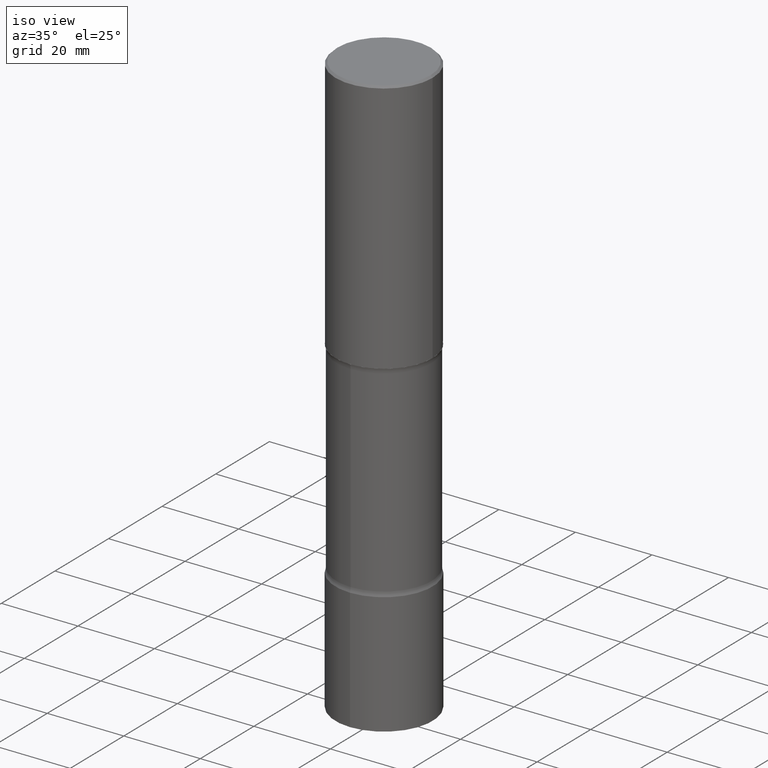
[diagram: clean part render]
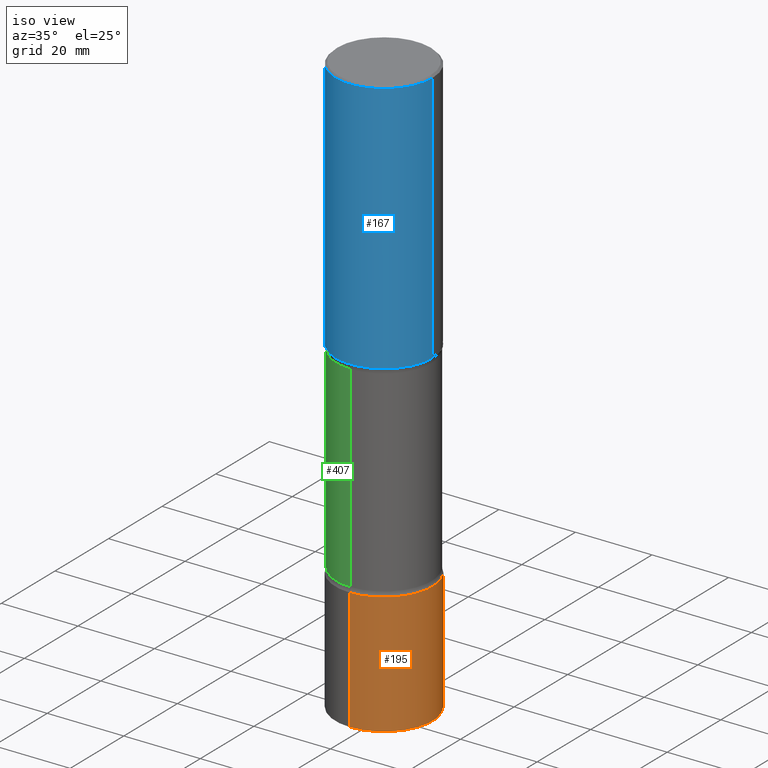
[diagram: same view with three faces highlighted in distinct colors, each labeled with its STEP entity id]
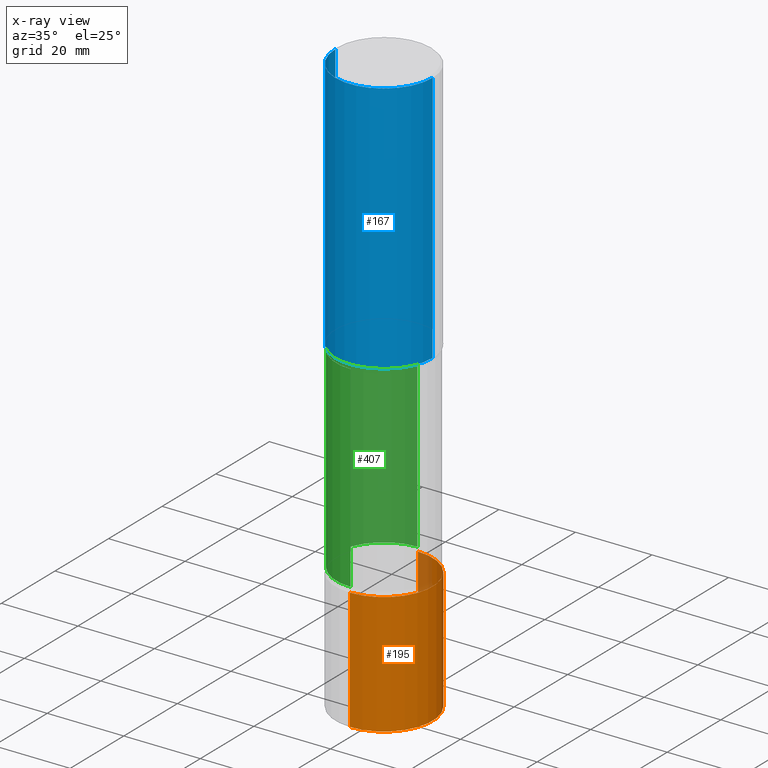
[diagram: x-ray of the same camera — body ghosted, the three highlighted faces saturated]
A machine part, iso view with three faces highlighted in distinct colors.
The next image is the same camera in x-ray (body ghosted, the three faces saturated) — at least one of them is partly hidden behind the body in this view.
Their STEP definitions:

[orange] entity #195 — the highlighted cylindrical surface (partial cylindrical patch) has radius 12.7 mm, axis along (-0, 0, 1).
#8 = DIRECTION ( 'NONE',  ( -2.444607917511519707E-29, 3.492714180422504382E-15, 1.000000000000000000 ) ) ;
#18 = CARTESIAN_POINT ( 'NONE',  ( -3.491481338843133355E-15, -0.5000000000000001110, 1.746357090211252585E-15 ) ) ;
#21 = CIRCLE ( 'NONE', #318, 0.5000000000000001110 ) ;
#41 = EDGE_LOOP ( 'NONE', ( #147, #309, #160, #263 ) ) ;
#56 = VERTEX_POINT ( 'NONE', #508 ) ;
#76 = EDGE_CURVE ( 'NONE', #56, #335, #260, .T. ) ;
#81 = DIRECTION ( 'NONE',  ( -2.444607917511519987E-29, 3.492714180422504776E-15, 1.000000000000000000 ) ) ;
#89 = DIRECTION ( 'NONE',  ( -6.982962677686265133E-15, -1.000000000000000000, 3.492714180422504382E-15 ) ) ;
#124 = AXIS2_PLACEMENT_3D ( 'NONE', #213, #324, #89 ) ;
#147 = ORIENTED_EDGE ( 'NONE', *, *, #76, .T. ) ;
#154 = DIRECTION ( 'NONE',  ( -2.444607917511519987E-29, 3.492714180422504776E-15, 1.000000000000000000 ) ) ;
#157 = EDGE_CURVE ( 'NONE', #335, #290, #368, .T. ) ;
#160 = ORIENTED_EDGE ( 'NONE', *, *, #264, .F. ) ;
#166 = DIRECTION ( 'NONE',  ( -6.982962677686265922E-15, -1.000000000000000000, 3.278217592397115073E-15 ) ) ;
#169 = CARTESIAN_POINT ( 'NONE',  ( 3.552713678800500929E-15, 0.5000000000000001110, -1.746357090211252585E-15 ) ) ;
#176 = DIRECTION ( 'NONE',  ( -2.444607917511519707E-29, 3.492714180422504382E-15, 1.000000000000000000 ) ) ;
#195 = ADVANCED_FACE ( 'NONE', ( #401 ), #326, .T. ) ;
#213 = CARTESIAN_POINT ( 'NONE',  ( 0.000000000000000000, 0.000000000000000000, 0.000000000000000000 ) ) ;
#248 = CARTESIAN_POINT ( 'NONE',  ( 3.552713678800647657E-15, 0.4999999999999835132, -4.750000000000001776 ) ) ;
#260 = CIRCLE ( 'NONE', #347, 0.5000000000000000000 ) ;
#263 = ORIENTED_EDGE ( 'NONE', *, *, #364, .F. ) ;
#264 = EDGE_CURVE ( 'NONE', #490, #290, #21, .T. ) ;
#265 = CARTESIAN_POINT ( 'NONE',  ( 3.552713678800631091E-15, 0.4999999999999790168, -6.000000000000002665 ) ) ;
#283 = CARTESIAN_POINT ( 'NONE',  ( -3.491481338843017787E-15, -0.5000000000000167644, -4.749999999999999112 ) ) ;
#290 = VERTEX_POINT ( 'NONE', #248 ) ;
#309 = ORIENTED_EDGE ( 'NONE', *, *, #157, .T. ) ;
#310 = VECTOR ( 'NONE', #176, 39.37007874015748143 ) ;
#318 = AXIS2_PLACEMENT_3D ( 'NONE', #322, #81, #166 ) ;
#322 = CARTESIAN_POINT ( 'NONE',  ( 1.161188760817972078E-28, -1.659039235700689818E-14, -4.750000000000000000 ) ) ;
#324 = DIRECTION ( 'NONE',  ( -2.444607917511519987E-29, 3.492714180422504776E-15, 1.000000000000000000 ) ) ;
#326 = CYLINDRICAL_SURFACE ( 'NONE', #124, 0.5000000000000001110 ) ;
#335 = VERTEX_POINT ( 'NONE', #265 ) ;
#347 = AXIS2_PLACEMENT_3D ( 'NONE', #470, #154, #351 ) ;
#351 = DIRECTION ( 'NONE',  ( -6.982962677686265922E-15, -1.000000000000000000, 4.370956789862821150E-15 ) ) ;
#364 = EDGE_CURVE ( 'NONE', #56, #490, #485, .T. ) ;
#368 = LINE ( 'NONE', #169, #393 ) ;
#393 = VECTOR ( 'NONE', #8, 39.37007874015748143 ) ;
#401 = FACE_OUTER_BOUND ( 'NONE', #41, .T. ) ;
#470 = CARTESIAN_POINT ( 'NONE',  ( 1.466764750506912217E-28, -2.095628508253502945E-14, -6.000000000000000888 ) ) ;
#485 = LINE ( 'NONE', #18, #310 ) ;
#490 = VERTEX_POINT ( 'NONE', #283 ) ;
#508 = CARTESIAN_POINT ( 'NONE',  ( -3.491481338842986233E-15, -0.5000000000000209832, -5.999999999999998224 ) ) ;

[blue] entity #167 — the highlighted cylindrical surface (partial cylindrical patch) has radius 12.7 mm, axis along (-0, 0, 1).
#13 = VERTEX_POINT ( 'NONE', #148 ) ;
#14 = AXIS2_PLACEMENT_3D ( 'NONE', #480, #297, #250 ) ;
#20 = VERTEX_POINT ( 'NONE', #350 ) ;
#53 = FACE_OUTER_BOUND ( 'NONE', #467, .T. ) ;
#67 = ORIENTED_EDGE ( 'NONE', *, *, #424, .T. ) ;
#73 = DIRECTION ( 'NONE',  ( -2.445468806185136597E-29, 3.491481338843145583E-15, 1.000000000000000000 ) ) ;
#82 = EDGE_CURVE ( 'NONE', #99, #20, #323, .T. ) ;
#96 = AXIS2_PLACEMENT_3D ( 'NONE', #240, #73, #242 ) ;
#97 = VECTOR ( 'NONE', #372, 39.37007874015748143 ) ;
#99 = VERTEX_POINT ( 'NONE', #463 ) ;
#104 = CARTESIAN_POINT ( 'NONE',  ( 0.4999999999999997780, -3.491481338843131778E-15, 2.438088387897966775E-29 ) ) ;
#132 = VECTOR ( 'NONE', #261, 39.37007874015748143 ) ;
#135 = DIRECTION ( 'NONE',  ( -2.445468806185136597E-29, 3.491481338843145583E-15, 1.000000000000000000 ) ) ;
#148 = CARTESIAN_POINT ( 'NONE',  ( 0.5000000000000000000, -1.265661985330639628E-14, -2.625000000000001776 ) ) ;
#167 = ADVANCED_FACE ( 'NONE', ( #53 ), #477, .T. ) ;
#168 = AXIS2_PLACEMENT_3D ( 'NONE', #445, #135, #434 ) ;
#179 = EDGE_CURVE ( 'NONE', #454, #13, #488, .T. ) ;
#228 = ORIENTED_EDGE ( 'NONE', *, *, #435, .F. ) ;
#233 = ORIENTED_EDGE ( 'NONE', *, *, #82, .F. ) ;
#234 = CARTESIAN_POINT ( 'NONE',  ( -0.5000000000000000000, -1.064770391819559223E-15, -2.625000000000001776 ) ) ;
#240 = CARTESIAN_POINT ( 'NONE',  ( 4.890937612370289799E-31, -6.982962677686315028E-17, -0.02000000000000006981 ) ) ;
#242 = DIRECTION ( 'NONE',  ( 1.000000000000000000, -6.982962677686266711E-15, 0.000000000000000000 ) ) ;
#250 = DIRECTION ( 'NONE',  ( 1.000000000000000000, -6.982962677686266711E-15, 0.000000000000000000 ) ) ;
#261 = DIRECTION ( 'NONE',  ( -2.445468806185136877E-29, 3.491481338843145188E-15, 1.000000000000000000 ) ) ;
#297 = DIRECTION ( 'NONE',  ( -2.445468806185136597E-29, 3.491481338843145583E-15, 1.000000000000000000 ) ) ;
#308 = ORIENTED_EDGE ( 'NONE', *, *, #179, .T. ) ;
#323 = CIRCLE ( 'NONE', #96, 0.4999999999999996114 ) ;
#350 = CARTESIAN_POINT ( 'NONE',  ( 0.4999999999999996114, -3.500078625662626318E-15, -0.02000000000000006981 ) ) ;
#372 = DIRECTION ( 'NONE',  ( -2.445468806185136877E-29, 3.491481338843145188E-15, 1.000000000000000000 ) ) ;
#411 = LINE ( 'NONE', #495, #97 ) ;
#424 = EDGE_CURVE ( 'NONE', #13, #20, #453, .T. ) ;
#434 = DIRECTION ( 'NONE',  ( 1.000000000000000000, -6.982962677686266711E-15, 4.876176775795935793E-29 ) ) ;
#435 = EDGE_CURVE ( 'NONE', #454, #99, #411, .T. ) ;
#445 = CARTESIAN_POINT ( 'NONE',  ( 0.000000000000000000, 0.000000000000000000, 0.000000000000000000 ) ) ;
#453 = LINE ( 'NONE', #104, #132 ) ;
#454 = VERTEX_POINT ( 'NONE', #234 ) ;
#463 = CARTESIAN_POINT ( 'NONE',  ( -0.4999999999999996114, 3.421651712066267296E-15, -0.02000000000000006981 ) ) ;
#467 = EDGE_LOOP ( 'NONE', ( #228, #308, #67, #233 ) ) ;
#477 = CYLINDRICAL_SURFACE ( 'NONE', #168, 0.4999999999999997780 ) ;
#480 = CARTESIAN_POINT ( 'NONE',  ( 6.419355616235988051E-29, -9.165138514463262923E-15, -2.625000000000001776 ) ) ;
#488 = CIRCLE ( 'NONE', #14, 0.5000000000000000000 ) ;
#495 = CARTESIAN_POINT ( 'NONE',  ( -0.4999999999999997780, 3.552713678800499352E-15, -2.459467545127452050E-29 ) ) ;

[green] entity #407 — the highlighted cylindrical surface (partial cylindrical patch) has radius 12.446 mm, axis along (0, -0, -1).
#6 = AXIS2_PLACEMENT_3D ( 'NONE', #211, #174, #370 ) ;
#35 = EDGE_CURVE ( 'NONE', #59, #111, #319, .T. ) ;
#59 = VERTEX_POINT ( 'NONE', #427 ) ;
#61 = CARTESIAN_POINT ( 'NONE',  ( 1.148444794047964962E-28, -1.643028152359054986E-14, -4.701010205144336318 ) ) ;
#63 = VECTOR ( 'NONE', #122, 39.37007874015748143 ) ;
#101 = DIRECTION ( 'NONE',  ( 2.601351323791836917E-29, -3.268248701348439037E-15, -1.000000000000000000 ) ) ;
#111 = VERTEX_POINT ( 'NONE', #315 ) ;
#122 = DIRECTION ( 'NONE',  ( 2.601351323791836917E-29, -3.268248701348439037E-15, -1.000000000000000000 ) ) ;
#128 = VERTEX_POINT ( 'NONE', #150 ) ;
#137 = CARTESIAN_POINT ( 'NONE',  ( 1.486357676291951426E-28, -2.067570323369244540E-14, -5.999999999999999112 ) ) ;
#141 = DIRECTION ( 'NONE',  ( 6.982962677686266711E-15, 1.000000000000000000, -2.230079994827968904E-15 ) ) ;
#150 = CARTESIAN_POINT ( 'NONE',  ( 3.421651712066386020E-15, 0.4899999999999836153, -4.701010205144338094 ) ) ;
#163 = VERTEX_POINT ( 'NONE', #217 ) ;
#174 = DIRECTION ( 'NONE',  ( 2.601351323791836917E-29, -3.268248701348439037E-15, -1.000000000000000000 ) ) ;
#184 = AXIS2_PLACEMENT_3D ( 'NONE', #137, #414, #141 ) ;
#192 = LINE ( 'NONE', #500, #194 ) ;
#194 = VECTOR ( 'NONE', #101, 39.37007874015748143 ) ;
#196 = EDGE_LOOP ( 'NONE', ( #270, #375, #317, #471 ) ) ;
#211 = CARTESIAN_POINT ( 'NONE',  ( 6.211455712822142342E-29, -9.805474700057820647E-15, -2.673989794855665458 ) ) ;
#217 = CARTESIAN_POINT ( 'NONE',  ( 3.421651712066334744E-15, 0.4899999999999904432, -2.673989794855666791 ) ) ;
#221 = CIRCLE ( 'NONE', #272, 0.4900000000000001021 ) ;
#246 = CARTESIAN_POINT ( 'NONE',  ( -3.361644018907903327E-15, -0.4900000000000209188, -5.999999999999998224 ) ) ;
#255 = DIRECTION ( 'NONE',  ( 6.982962677686266711E-15, 1.000000000000000000, -3.345119992241954342E-15 ) ) ;
#270 = ORIENTED_EDGE ( 'NONE', *, *, #35, .F. ) ;
#272 = AXIS2_PLACEMENT_3D ( 'NONE', #61, #360, #255 ) ;
#307 = CYLINDRICAL_SURFACE ( 'NONE', #184, 0.4900000000000002132 ) ;
#315 = CARTESIAN_POINT ( 'NONE',  ( -3.395946508896793533E-15, -0.4900000000000166445, -4.701010205144335430 ) ) ;
#317 = ORIENTED_EDGE ( 'NONE', *, *, #497, .T. ) ;
#319 = LINE ( 'NONE', #246, #63 ) ;
#360 = DIRECTION ( 'NONE',  ( 2.601351323791836917E-29, -3.268248701348439037E-15, -1.000000000000000000 ) ) ;
#370 = DIRECTION ( 'NONE',  ( 6.982962677686265922E-15, 1.000000000000000000, -3.345119992241952764E-15 ) ) ;
#375 = ORIENTED_EDGE ( 'NONE', *, *, #465, .T. ) ;
#387 = CIRCLE ( 'NONE', #6, 0.4900000000000003242 ) ;
#407 = ADVANCED_FACE ( 'NONE', ( #449 ), #307, .T. ) ;
#414 = DIRECTION ( 'NONE',  ( 2.601351323791836917E-29, -3.268248701348439037E-15, -1.000000000000000000 ) ) ;
#427 = CARTESIAN_POINT ( 'NONE',  ( -3.395946508896848359E-15, -0.4900000000000101497, -2.673989794855663682 ) ) ;
#449 = FACE_OUTER_BOUND ( 'NONE', #196, .T. ) ;
#465 = EDGE_CURVE ( 'NONE', #59, #163, #387, .T. ) ;
#471 = ORIENTED_EDGE ( 'NONE', *, *, #502, .F. ) ;
#497 = EDGE_CURVE ( 'NONE', #163, #128, #192, .T. ) ;
#500 = CARTESIAN_POINT ( 'NONE',  ( 3.421651712066420335E-15, 0.4899999999999795630, -6.000000000000000888 ) ) ;
#502 = EDGE_CURVE ( 'NONE', #111, #128, #221, .T. ) ;